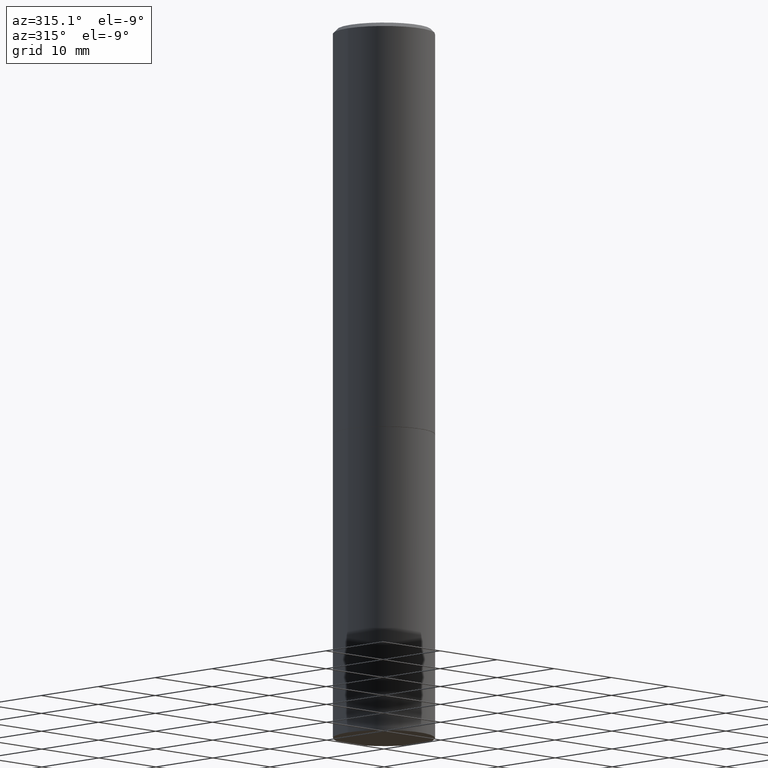
[diagram: clean part render]
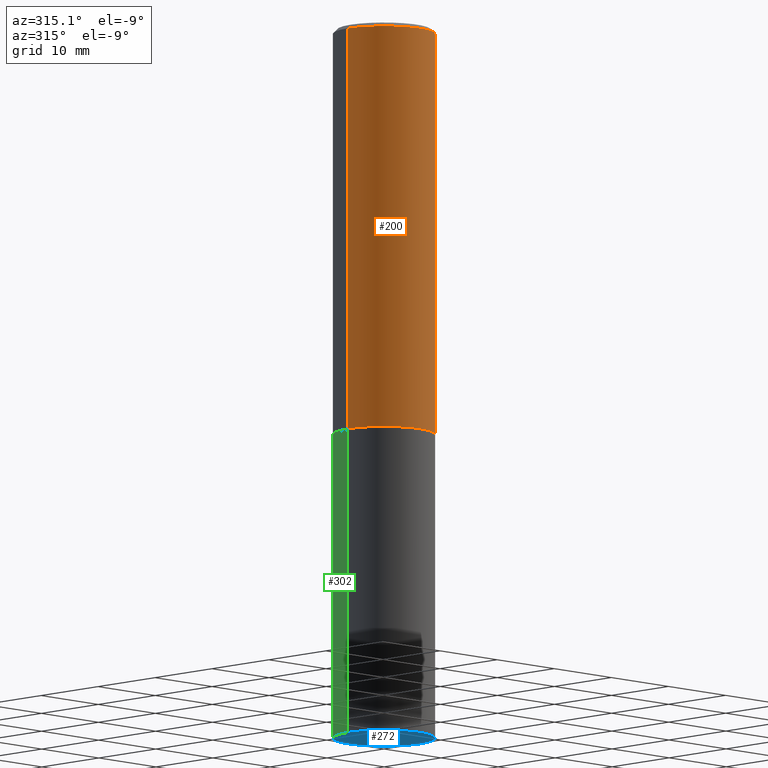
[diagram: same view with three faces highlighted in distinct colors, each labeled with its STEP entity id]
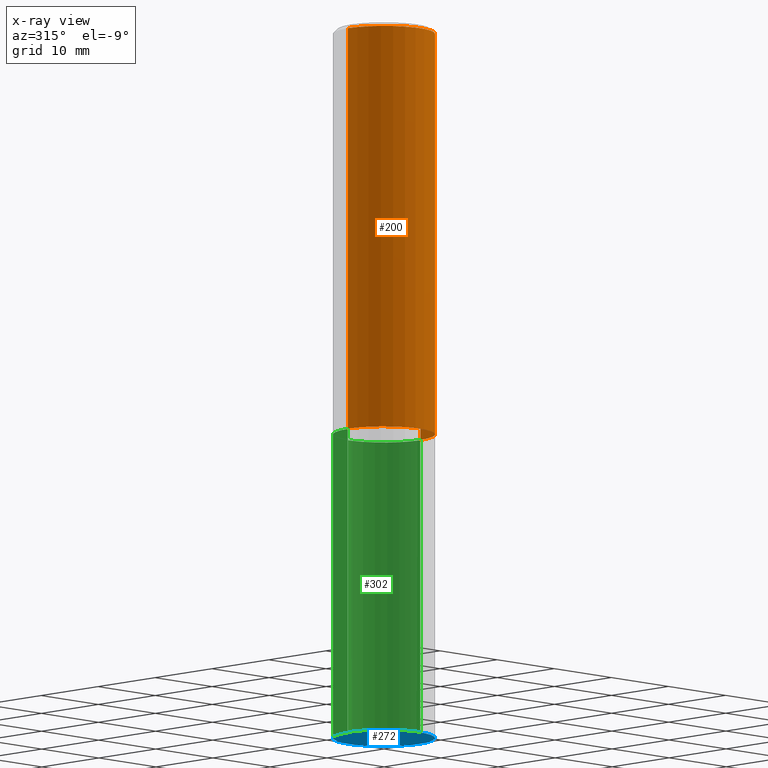
[diagram: x-ray of the same camera — body ghosted, the three highlighted faces saturated]
A machine part, auxiliary view with three faces highlighted in distinct colors.
The next image is the same camera in x-ray (body ghosted, the three faces saturated) — at least one of them is partly hidden behind the body in this view.
Their STEP definitions:

[orange] entity #200 — the highlighted cylindrical surface (partial cylindrical patch) has radius 6.35 mm, axis along (-0, 0, 1).
#2 = VERTEX_POINT ( 'NONE', #228 ) ;
#3 = LINE ( 'NONE', #238, #68 ) ;
#16 = FACE_OUTER_BOUND ( 'NONE', #252, .T. ) ;
#17 = ORIENTED_EDGE ( 'NONE', *, *, #71, .F. ) ;
#33 = LINE ( 'NONE', #293, #263 ) ;
#47 = CIRCLE ( 'NONE', #79, 0.2500000000000000000 ) ;
#68 = VECTOR ( 'NONE', #232, 39.37007874015748143 ) ;
#71 = EDGE_CURVE ( 'NONE', #137, #283, #3, .T. ) ;
#74 = AXIS2_PLACEMENT_3D ( 'NONE', #80, #306, #362 ) ;
#79 = AXIS2_PLACEMENT_3D ( 'NONE', #366, #156, #281 ) ;
#80 = CARTESIAN_POINT ( 'NONE',  ( 0.000000000000000000, 0.000000000000000000, 0.000000000000000000 ) ) ;
#81 = CARTESIAN_POINT ( 'NONE',  ( 4.890937612370280165E-31, -6.982962677686301470E-17, -0.02000000000000003164 ) ) ;
#86 = ORIENTED_EDGE ( 'NONE', *, *, #237, .T. ) ;
#106 = CIRCLE ( 'NONE', #268, 0.2499999999999998057 ) ;
#109 = CARTESIAN_POINT ( 'NONE',  ( -0.2499999999999998057, 1.675911042644702196E-15, -0.02000000000000003164 ) ) ;
#120 = CYLINDRICAL_SURFACE ( 'NONE', #74, 0.2499999999999998890 ) ;
#137 = VERTEX_POINT ( 'NONE', #242 ) ;
#139 = DIRECTION ( 'NONE',  ( -2.445468806185136877E-29, 3.491481338843145188E-15, 1.000000000000000000 ) ) ;
#150 = ORIENTED_EDGE ( 'NONE', *, *, #342, .T. ) ;
#156 = DIRECTION ( 'NONE',  ( -2.445468806185136597E-29, 3.491481338843145583E-15, 1.000000000000000000 ) ) ;
#184 = CARTESIAN_POINT ( 'NONE',  ( 0.2500000000000000000, -8.725211865769012469E-15, -1.998999999999999666 ) ) ;
#185 = VERTEX_POINT ( 'NONE', #184 ) ;
#191 = DIRECTION ( 'NONE',  ( -2.445468806185136597E-29, 3.491481338843145583E-15, 1.000000000000000000 ) ) ;
#194 = DIRECTION ( 'NONE',  ( 1.000000000000000000, -6.982962677686266711E-15, 0.000000000000000000 ) ) ;
#200 = ADVANCED_FACE ( 'NONE', ( #16 ), #120, .T. ) ;
#220 = EDGE_CURVE ( 'NONE', #283, #2, #106, .T. ) ;
#228 = CARTESIAN_POINT ( 'NONE',  ( 0.2499999999999998057, -1.784954126219744611E-15, -0.02000000000000003164 ) ) ;
#232 = DIRECTION ( 'NONE',  ( -2.445468806185136877E-29, 3.491481338843145188E-15, 1.000000000000000000 ) ) ;
#237 = EDGE_CURVE ( 'NONE', #137, #185, #47, .T. ) ;
#238 = CARTESIAN_POINT ( 'NONE',  ( -0.2499999999999998890, 1.776356839400249676E-15, -1.229733772563726025E-29 ) ) ;
#241 = ORIENTED_EDGE ( 'NONE', *, *, #220, .F. ) ;
#242 = CARTESIAN_POINT ( 'NONE',  ( -0.2500000000000000000, -1.748293572161903489E-15, -1.998999999999999666 ) ) ;
#252 = EDGE_LOOP ( 'NONE', ( #17, #86, #150, #241 ) ) ;
#263 = VECTOR ( 'NONE', #139, 39.37007874015748143 ) ;
#268 = AXIS2_PLACEMENT_3D ( 'NONE', #81, #191, #194 ) ;
#281 = DIRECTION ( 'NONE',  ( 1.000000000000000000, -6.982962677686266711E-15, 0.000000000000000000 ) ) ;
#283 = VERTEX_POINT ( 'NONE', #109 ) ;
#293 = CARTESIAN_POINT ( 'NONE',  ( 0.2499999999999998890, -1.745740669421565889E-15, 1.219044193948983388E-29 ) ) ;
#306 = DIRECTION ( 'NONE',  ( -2.445468806185136597E-29, 3.491481338843145583E-15, 1.000000000000000000 ) ) ;
#342 = EDGE_CURVE ( 'NONE', #185, #2, #33, .T. ) ;
#362 = DIRECTION ( 'NONE',  ( 1.000000000000000000, -6.982962677686266711E-15, 4.876176775795935793E-29 ) ) ;
#366 = CARTESIAN_POINT ( 'NONE',  ( 4.888492143564087030E-29, -6.979471196347446580E-15, -1.998999999999999666 ) ) ;

[blue] entity #272 — the highlighted planar face has unit normal (0, -0, -1).
#4 = DIRECTION ( 'NONE',  ( -2.445468806185136597E-29, 3.491481338843145583E-15, 1.000000000000000000 ) ) ;
#5 = AXIS2_PLACEMENT_3D ( 'NONE', #92, #4, #265 ) ;
#21 = ORIENTED_EDGE ( 'NONE', *, *, #202, .F. ) ;
#25 = DIRECTION ( 'NONE',  ( -1.000000000000000000, 6.982962677686265922E-15, -4.876176775795935793E-29 ) ) ;
#35 = AXIS2_PLACEMENT_3D ( 'NONE', #163, #279, #25 ) ;
#53 = PLANE ( 'NONE',  #35 ) ;
#61 = VERTEX_POINT ( 'NONE', #199 ) ;
#92 = CARTESIAN_POINT ( 'NONE',  ( 8.559140821647976968E-29, -1.222018468595100934E-14, -3.500000000000000000 ) ) ;
#113 = CIRCLE ( 'NONE', #5, 0.2500000000000000000 ) ;
#121 = EDGE_LOOP ( 'NONE', ( #21, #356 ) ) ;
#130 = FACE_OUTER_BOUND ( 'NONE', #121, .T. ) ;
#144 = VERTEX_POINT ( 'NONE', #321 ) ;
#153 = AXIS2_PLACEMENT_3D ( 'NONE', #336, #299, #332 ) ;
#163 = CARTESIAN_POINT ( 'NONE',  ( 1.745740669421652072E-15, 0.2499999999999877598, -3.500000000000000888 ) ) ;
#175 = CIRCLE ( 'NONE', #153, 0.2500000000000000000 ) ;
#199 = CARTESIAN_POINT ( 'NONE',  ( 0.2500000000000000000, -1.396592535537257602E-14, -3.500000000000000000 ) ) ;
#202 = EDGE_CURVE ( 'NONE', #61, #144, #175, .T. ) ;
#265 = DIRECTION ( 'NONE',  ( 1.000000000000000000, -6.982962677686270655E-15, 0.000000000000000000 ) ) ;
#272 = ADVANCED_FACE ( 'NONE', ( #130 ), #53, .T. ) ;
#279 = DIRECTION ( 'NONE',  ( 2.438088387897960049E-29, -3.491481338843145188E-15, -1.000000000000000000 ) ) ;
#299 = DIRECTION ( 'NONE',  ( -2.445468806185136597E-29, 3.491481338843145583E-15, 1.000000000000000000 ) ) ;
#321 = CARTESIAN_POINT ( 'NONE',  ( -0.2500000000000000000, -7.825216842418397817E-15, -3.500000000000000000 ) ) ;
#332 = DIRECTION ( 'NONE',  ( 1.000000000000000000, -6.982962677686270655E-15, 0.000000000000000000 ) ) ;
#336 = CARTESIAN_POINT ( 'NONE',  ( 8.559140821647976968E-29, -1.222018468595100934E-14, -3.500000000000000000 ) ) ;
#351 = EDGE_CURVE ( 'NONE', #144, #61, #113, .T. ) ;
#356 = ORIENTED_EDGE ( 'NONE', *, *, #351, .F. ) ;

[green] entity #302 — the highlighted cylindrical surface (partial cylindrical patch) has radius 6.35 mm, axis along (-0, 0, 1).
#14 = DIRECTION ( 'NONE',  ( 1.000000000000000000, -6.982962677686266711E-15, 0.000000000000000000 ) ) ;
#41 = LINE ( 'NONE', #327, #303 ) ;
#44 = DIRECTION ( 'NONE',  ( -2.445468806185136597E-29, 3.491481338843145583E-15, 1.000000000000000000 ) ) ;
#61 = VERTEX_POINT ( 'NONE', #199 ) ;
#73 = DIRECTION ( 'NONE',  ( -2.445468806185136877E-29, 3.491481338843145188E-15, 1.000000000000000000 ) ) ;
#84 = CARTESIAN_POINT ( 'NONE',  ( 0.000000000000000000, 0.000000000000000000, 0.000000000000000000 ) ) ;
#90 = DIRECTION ( 'NONE',  ( -2.445468806185136597E-29, 3.491481338843145583E-15, 1.000000000000000000 ) ) ;
#94 = CIRCLE ( 'NONE', #239, 0.2500000000000000000 ) ;
#98 = ORIENTED_EDGE ( 'NONE', *, *, #189, .F. ) ;
#102 = EDGE_CURVE ( 'NONE', #144, #280, #41, .T. ) ;
#119 = EDGE_LOOP ( 'NONE', ( #177, #215, #98, #209 ) ) ;
#132 = CARTESIAN_POINT ( 'NONE',  ( -0.2500000000000000000, -7.825216842418397817E-15, -1.999999999999999778 ) ) ;
#136 = AXIS2_PLACEMENT_3D ( 'NONE', #84, #90, #284 ) ;
#144 = VERTEX_POINT ( 'NONE', #321 ) ;
#146 = CARTESIAN_POINT ( 'NONE',  ( 4.890937612370272633E-29, -6.982962677686290376E-15, -1.999999999999999778 ) ) ;
#153 = AXIS2_PLACEMENT_3D ( 'NONE', #336, #299, #332 ) ;
#160 = CARTESIAN_POINT ( 'NONE',  ( 0.2500000000000000000, -1.745740669421566678E-15, 1.219044193948983948E-29 ) ) ;
#175 = CIRCLE ( 'NONE', #153, 0.2500000000000000000 ) ;
#177 = ORIENTED_EDGE ( 'NONE', *, *, #202, .T. ) ;
#189 = EDGE_CURVE ( 'NONE', #298, #280, #94, .T. ) ;
#199 = CARTESIAN_POINT ( 'NONE',  ( 0.2500000000000000000, -1.396592535537257602E-14, -3.500000000000000000 ) ) ;
#202 = EDGE_CURVE ( 'NONE', #61, #144, #175, .T. ) ;
#209 = ORIENTED_EDGE ( 'NONE', *, *, #257, .F. ) ;
#215 = ORIENTED_EDGE ( 'NONE', *, *, #102, .T. ) ;
#231 = FACE_OUTER_BOUND ( 'NONE', #119, .T. ) ;
#239 = AXIS2_PLACEMENT_3D ( 'NONE', #146, #44, #14 ) ;
#257 = EDGE_CURVE ( 'NONE', #61, #298, #277, .T. ) ;
#260 = CARTESIAN_POINT ( 'NONE',  ( 0.2500000000000000000, -8.728703347107857054E-15, -1.999999999999999778 ) ) ;
#277 = LINE ( 'NONE', #160, #319 ) ;
#280 = VERTEX_POINT ( 'NONE', #132 ) ;
#284 = DIRECTION ( 'NONE',  ( 1.000000000000000000, -6.982962677686266711E-15, 4.876176775795935793E-29 ) ) ;
#298 = VERTEX_POINT ( 'NONE', #260 ) ;
#299 = DIRECTION ( 'NONE',  ( -2.445468806185136597E-29, 3.491481338843145583E-15, 1.000000000000000000 ) ) ;
#302 = ADVANCED_FACE ( 'NONE', ( #231 ), #348, .T. ) ;
#303 = VECTOR ( 'NONE', #73, 39.37007874015748143 ) ;
#319 = VECTOR ( 'NONE', #363, 39.37007874015748143 ) ;
#321 = CARTESIAN_POINT ( 'NONE',  ( -0.2500000000000000000, -7.825216842418397817E-15, -3.500000000000000000 ) ) ;
#327 = CARTESIAN_POINT ( 'NONE',  ( -0.2500000000000000000, 1.776356839400250465E-15, -1.229733772563726445E-29 ) ) ;
#332 = DIRECTION ( 'NONE',  ( 1.000000000000000000, -6.982962677686270655E-15, 0.000000000000000000 ) ) ;
#336 = CARTESIAN_POINT ( 'NONE',  ( 8.559140821647976968E-29, -1.222018468595100934E-14, -3.500000000000000000 ) ) ;
#348 = CYLINDRICAL_SURFACE ( 'NONE', #136, 0.2500000000000000000 ) ;
#363 = DIRECTION ( 'NONE',  ( -2.445468806185136877E-29, 3.491481338843145188E-15, 1.000000000000000000 ) ) ;